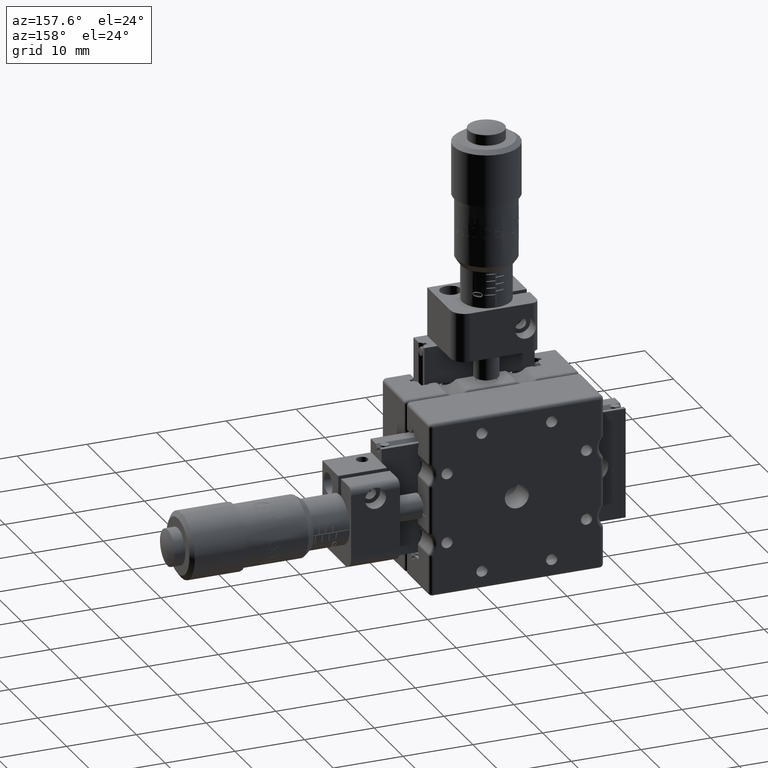
[diagram: clean part render]
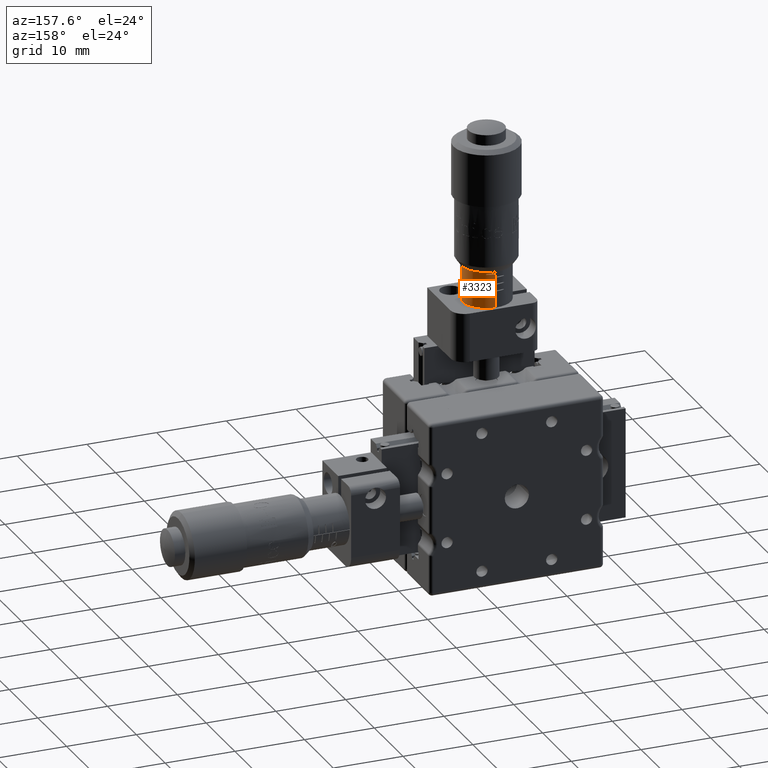
[diagram: same view with one face highlighted and labeled with its STEP entity id]
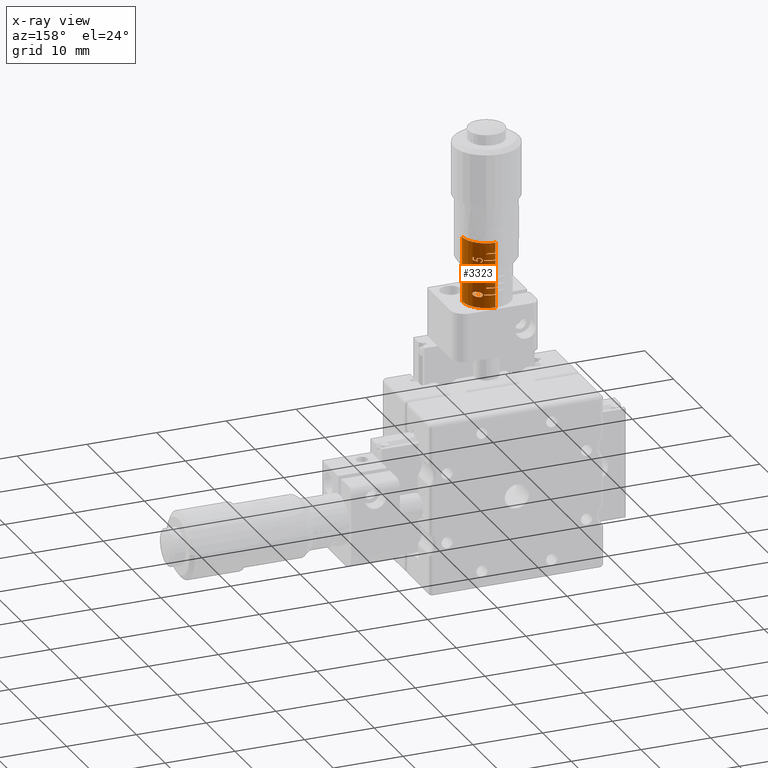
[diagram: x-ray of the same camera — body ghosted, the highlighted face saturated]
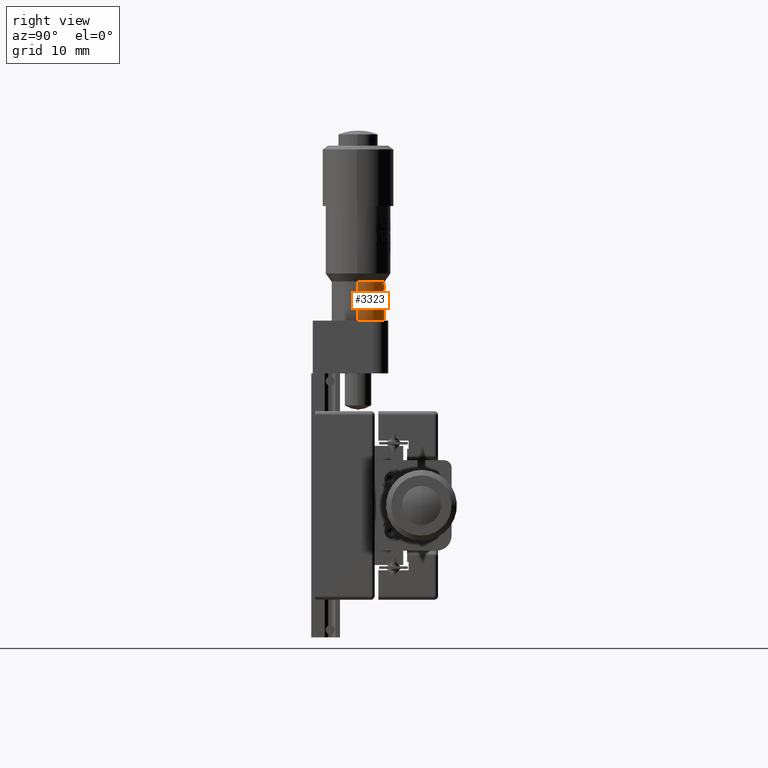
[diagram: same view with one face highlighted and labeled with its STEP entity id]
A machine part, auxiliary view. The second image highlights one B-rep face of the part: STEP entity #3323.
The next image is the same camera in x-ray: the body ghosted, the highlighted face saturated — about 0% of this face is hidden behind the body in this view.
A second angle (right view) of the same face is appended — the face is thin or edge-on in the first view.
In plain terms, the highlighted cylindrical surface (edge-blend (fillet) strip) has radius 3.5 mm, axis along (0, 0, 1).
Its self-contained STEP definition (entity closure, byte-faithful):
#148 = CARTESIAN_POINT ( 'NONE',  ( 1.345043838974542300, 9.431231510002987800, 32.35000000000000900 ) ) ;
#325 = FACE_BOUND ( 'NONE', #17824, .T. ) ;
#404 = CARTESIAN_POINT ( 'NONE',  ( 2.445667826079122700, 8.703738980900551400, 31.28853999732907100 ) ) ;
#492 = CARTESIAN_POINT ( 'NONE',  ( 1.842588051969444600, 9.176036225399691700, 31.62425157621712300 ) ) ;
#556 = AXIS2_PLACEMENT_3D ( 'NONE', #29316, #56627, #50916 ) ;
#670 = CARTESIAN_POINT ( 'NONE',  ( 2.199874524498787000, 8.925935090548714300, 26.75848073805216700 ) ) ;
#791 = CARTESIAN_POINT ( 'NONE',  ( 2.306688131590320700, 8.832335439031249200, 26.04070512820513600 ) ) ;
#828 = DIRECTION ( 'NONE',  ( -1.110223024626042000E-016, -1.762506864451433600E-016, -1.000000000000000000 ) ) ;
#906 = CARTESIAN_POINT ( 'NONE',  ( 2.820141735865207000, 8.272872545438046300, 31.70555555555556300 ) ) ;
#978 = B_SPLINE_CURVE_WITH_KNOTS ( 'NONE', 3,
 ( #3319, #3541, #41774, #41330, #46546, #52261, #19929, #35631, #62745, #14002 ),
 .UNSPECIFIED., .F., .F.,
 ( 4, 2, 2, 2, 4 ),
 ( 0.0000000000000000000, 0.0001162817139756727900, 0.0002325634279513455900, 0.0003488451419270183900, 0.0004651268559026911700 ),
 .UNSPECIFIED. ) ;
#1116 = ORIENTED_EDGE ( 'NONE', *, *, #64079, .T. ) ;
#1137 = CARTESIAN_POINT ( 'NONE',  ( 2.243669714953638200, 8.886480041583775200, 31.62655983367564600 ) ) ;
#1144 = CARTESIAN_POINT ( 'NONE',  ( 2.307101722523930800, 8.831972956154139400, 31.16282051282052000 ) ) ;
#1239 = VERTEX_POINT ( 'NONE', #18248 ) ;
#1254 = ORIENTED_EDGE ( 'NONE', *, *, #62588, .F. ) ;
#1406 = DIRECTION ( 'NONE',  ( 0.02923618277858830400, 0.9995725314435851500, 0.0000000000000000000 ) ) ;
#1543 = LINE ( 'NONE', #4075, #54221 ) ;
#1561 = CARTESIAN_POINT ( 'NONE',  ( -3.341146258833440100E-015, 6.199999999999907800, 32.35000000000000900 ) ) ;
#1716 = LINE ( 'NONE', #12764, #34014 ) ;
#1823 = CARTESIAN_POINT ( 'NONE',  ( 2.317583660354155800, 8.822784831038012100, 31.19076574097502100 ) ) ;
#1860 = EDGE_CURVE ( 'NONE', #30095, #50330, #37928, .T. ) ;
#1880 = CARTESIAN_POINT ( 'NONE',  ( 1.345043838974542000, 9.431231510002964700, 29.35000000000000900 ) ) ;
#1991 = CIRCLE ( 'NONE', #19037, 3.500000000000004400 ) ;
#2310 = CARTESIAN_POINT ( 'NONE',  ( 2.306688131590320700, 8.832335439031249200, 26.75982905982906200 ) ) ;
#2344 = ORIENTED_EDGE ( 'NONE', *, *, #25528, .T. ) ;
#2488 = CARTESIAN_POINT ( 'NONE',  ( 1.868729656467126300, 9.159366396889678800, 31.38267060630342400 ) ) ;
#2881 = VERTEX_POINT ( 'NONE', #30908 ) ;
#2964 = CARTESIAN_POINT ( 'NONE',  ( 0.1522948242705947600, 9.696685042508081100, 33.90000000000001300 ) ) ;
#3022 = ORIENTED_EDGE ( 'NONE', *, *, #55487, .F. ) ;
#3048 = EDGE_CURVE ( 'NONE', #39287, #44012, #68383, .T. ) ;
#3065 = CARTESIAN_POINT ( 'NONE',  ( 1.617056453708161800, 9.304050325867875100, 89.54102306920762500 ) ) ;
#3210 = CARTESIAN_POINT ( 'NONE',  ( 1.762029937466577100, 9.224111522327016000, 26.39454293536325100 ) ) ;
#3260 = EDGE_CURVE ( 'NONE', #28675, #7228, #66425, .T. ) ;
#3283 = ORIENTED_EDGE ( 'NONE', *, *, #45192, .F. ) ;
#3319 = CARTESIAN_POINT ( 'NONE',  ( 1.868729656467126300, 9.159366396889678800, 31.38267060630342400 ) ) ;
#3323 = ADVANCED_FACE ( 'NONE', ( #57289, #8828, #325 ), #4631, .T. ) ;
#3353 = CARTESIAN_POINT ( 'NONE',  ( 2.450975633510581000, 8.698554281552429000, 31.30830665964541700 ) ) ;
#3402 = EDGE_LOOP ( 'NONE', ( #43823, #14660, #19127, #33160, #29754, #47851, #30860, #63137, #4291, #45608, #3022, #36145, #6135, #41241, #24835, #36868, #50058, #19672, #1254, #43193, #16437, #52787, #3283, #11332, #11723, #49507, #12457, #12769, #13585, #35448, #66813, #6731 ) ) ;
#3531 = CARTESIAN_POINT ( 'NONE',  ( 1.617056453708154400, 9.304050325867843100, 26.45000000000001400 ) ) ;
#3541 = CARTESIAN_POINT ( 'NONE',  ( 1.869791135084605700, 9.158696112678073900, 31.42178275452875300 ) ) ;
#3822 =( BOUNDED_CURVE ( )  B_SPLINE_CURVE ( 3, ( #65528, #16316, #27263, #404 ),
 .UNSPECIFIED., .F., .T. ) 
 B_SPLINE_CURVE_WITH_KNOTS ( ( 4, 4 ),
 ( 0.7119615595347752500, 0.8263709268580833300 ),
 .UNSPECIFIED. ) 
 CURVE ( )  GEOMETRIC_REPRESENTATION_ITEM ( )  RATIONAL_B_SPLINE_CURVE ( ( 1.000000000000000000, 0.9989095054800453100, 0.9989095054800453100, 1.000000000000000000 ) ) 
 REPRESENTATION_ITEM ( '' )  );
#4074 = CARTESIAN_POINT ( 'NONE',  ( 2.089667197056748200, 9.008581913311092000, 26.05655381209104200 ) ) ;
#4075 = CARTESIAN_POINT ( 'NONE',  ( 1.617056453708161800, 9.304050325867875100, 89.54102306920762500 ) ) ;
#4133 = CARTESIAN_POINT ( 'NONE',  ( 1.826799477053987500, 9.185619137860682000, 31.17614053805915100 ) ) ;
#4291 = ORIENTED_EDGE ( 'NONE', *, *, #59993, .F. ) ;
#4300 = CARTESIAN_POINT ( 'NONE',  ( 2.127933603052497300, 8.978830434013486800, 31.74626068376069200 ) ) ;
#4303 = VERTEX_POINT ( 'NONE', #30018 ) ;
#4355 = CARTESIAN_POINT ( 'NONE',  ( 2.031587057911122600, 9.050174742709392800, 31.15480016308616500 ) ) ;
#4422 = CARTESIAN_POINT ( 'NONE',  ( 2.498060110213240000, 8.664585056465314800, 31.20297857276168700 ) ) ;
#4631 = CYLINDRICAL_SURFACE ( 'NONE', #6144, 3.500000000000004900 ) ;
#5059 = CARTESIAN_POINT ( 'NONE',  ( 2.306688131590320700, 8.832335439031249200, 26.04070512820513600 ) ) ;
#5456 = VECTOR ( 'NONE', #828, 1000.000000000000000 ) ;
#5500 = VERTEX_POINT ( 'NONE', #68334 ) ;
#5532 = CARTESIAN_POINT ( 'NONE',  ( 2.846237722388087900, 8.236892443811088400, 26.39454293536325100 ) ) ;
#5769 = CARTESIAN_POINT ( 'NONE',  ( 2.737309494181634900, 8.382028535163407000, 26.14599216129492400 ) ) ;
#5830 = CARTESIAN_POINT ( 'NONE',  ( -3.398667433906809700E-015, 6.199999999999907800, 31.70555555555556300 ) ) ;
#5846 = EDGE_CURVE ( 'NONE', #43414, #13036, #66514, .T. ) ;
#5899 = CARTESIAN_POINT ( 'NONE',  ( 2.161022490076872000, 8.953421961305432200, 31.65060468727638800 ) ) ;
#5938 = CARTESIAN_POINT ( 'NONE',  ( 2.085254022110421000, 9.011513001952572200, 31.74524271249684700 ) ) ;
#6062 = CARTESIAN_POINT ( 'NONE',  ( 1.345043838974543200, 9.431231510002961100, 30.45000000000000600 ) ) ;
#6135 = ORIENTED_EDGE ( 'NONE', *, *, #24599, .F. ) ;
#6144 = AXIS2_PLACEMENT_3D ( 'NONE', #49722, #32850, #38333 ) ;
#6239 = CARTESIAN_POINT ( 'NONE',  ( 2.540621218968835700, 8.612096486199428500, 26.04863651987253400 ) ) ;
#6428 = ORIENTED_EDGE ( 'NONE', *, *, #3260, .T. ) ;
#6513 = CARTESIAN_POINT ( 'NONE',  ( 2.820141735865207400, 8.272872545438067600, 89.54102306920762500 ) ) ;
#6605 = CARTESIAN_POINT ( 'NONE',  ( 2.354992501680075500, 8.789259311829905400, 31.46993812933041600 ) ) ;
#6731 = ORIENTED_EDGE ( 'NONE', *, *, #48306, .T. ) ;
#7096 = DIRECTION ( 'NONE',  ( -1.110223024626042000E-016, -1.762506864451433600E-016, -1.000000000000000000 ) ) ;
#7152 = VERTEX_POINT ( 'NONE', #2488 ) ;
#7228 = VERTEX_POINT ( 'NONE', #62141 ) ;
#7243 = DIRECTION ( 'NONE',  ( -0.02923618277858474100, -0.9995725314435851500, 0.0000000000000000000 ) ) ;
#7275 = CARTESIAN_POINT ( 'NONE',  ( 0.1522948242706012300, 9.696685042508081100, 26.45000000000003100 ) ) ;
#7293 = CARTESIAN_POINT ( 'NONE',  ( 1.345043838974542700, 9.431231510002998400, 89.54102306920762500 ) ) ;
#7722 = AXIS2_PLACEMENT_3D ( 'NONE', #9256, #14707, #52729 ) ;
#8026 = VECTOR ( 'NONE', #10516, 1000.000000000000000 ) ;
#8158 = VERTEX_POINT ( 'NONE', #3210 ) ;
#8213 = DIRECTION ( 'NONE',  ( -5.173820016161969200E-018, -1.793466154370806700E-016, -1.000000000000000000 ) ) ;
#8249 = CARTESIAN_POINT ( 'NONE',  ( 1.345043838974542300, 9.431231510002998400, 89.54102306920762500 ) ) ;
#8597 = CIRCLE ( 'NONE', #12843, 3.500000000000005300 ) ;
#8828 = FACE_BOUND ( 'NONE', #65018, .T. ) ;
#8875 = CARTESIAN_POINT ( 'NONE',  ( 1.769432086043322400, 9.219847098232760300, 31.28903806594785700 ) ) ;
#8909 = CARTESIAN_POINT ( 'NONE',  ( 0.1522948242706015900, 9.696685042508081100, 28.45000000000003500 ) ) ;
#8943 = CARTESIAN_POINT ( 'NONE',  ( 1.762029937466577100, 9.224111522327016000, 26.39454293536325100 ) ) ;
#9256 = CARTESIAN_POINT ( 'NONE',  ( -3.878472096733248600E-015, 6.199999999999919400, 27.45000000000001000 ) ) ;
#9333 = CARTESIAN_POINT ( 'NONE',  ( 1.345043838974544000, 9.431231510002961100, 28.45000000000001000 ) ) ;
#9529 = CARTESIAN_POINT ( 'NONE',  ( 1.767847977080011300, 9.220742250107544900, 26.32368784707362900 ) ) ;
#9572 = CARTESIAN_POINT ( 'NONE',  ( 1.873911991354574300, 9.156111410833865700, 31.32302804056229900 ) ) ;
#9604 = EDGE_CURVE ( 'NONE', #26556, #50223, #66749, .T. ) ;
#9703 = CARTESIAN_POINT ( 'NONE',  ( 0.1522948242706010400, 9.696685042508081100, 27.35000000000003300 ) ) ;
#10010 = CARTESIAN_POINT ( 'NONE',  ( 2.415895396434323900, 8.732627896685830400, 31.60391134316518300 ) ) ;
#10240 = CARTESIAN_POINT ( 'NONE',  ( 2.306688131590320700, 8.832335439031249200, 26.75982905982906200 ) ) ;
#10307 = DIRECTION ( 'NONE',  ( 0.02923618277858830400, 0.9995725314435851500, 0.0000000000000000000 ) ) ;
#10344 = EDGE_CURVE ( 'NONE', #22319, #36007, #32452, .T. ) ;
#10359 = VERTEX_POINT ( 'NONE', #66846 ) ;
#10516 = DIRECTION ( 'NONE',  ( -1.110223024626042000E-016, -1.762506864451433600E-016, -1.000000000000000000 ) ) ;
#10639 = LINE ( 'NONE', #37462, #30186 ) ;
#10681 = EDGE_CURVE ( 'NONE', #10359, #50055, #8597, .T. ) ;
#10944 = CARTESIAN_POINT ( 'NONE',  ( 2.846237722388087900, 8.236892443811088400, 26.39454293536325100 ) ) ;
#11009 = AXIS2_PLACEMENT_3D ( 'NONE', #30055, #35529, #45741 ) ;
#11188 = CARTESIAN_POINT ( 'NONE',  ( 2.127933603052497300, 8.978830434013486800, 31.74626068376069200 ) ) ;
#11204 = EDGE_CURVE ( 'NONE', #13036, #43435, #55019, .T. ) ;
#11332 = ORIENTED_EDGE ( 'NONE', *, *, #10681, .F. ) ;
#11363 = CARTESIAN_POINT ( 'NONE',  ( 1.867480682193339400, 9.160532628995021300, 26.64232556434873400 ) ) ;
#11421 = CARTESIAN_POINT ( 'NONE',  ( 1.762512999236761900, 9.223830061377551500, 31.43136103463786000 ) ) ;
#11433 = LINE ( 'NONE', #60923, #36924 ) ;
#11548 = DIRECTION ( 'NONE',  ( 0.02923618277858829100, 0.9995725314435850400, 0.0000000000000000000 ) ) ;
#11582 = CIRCLE ( 'NONE', #43516, 3.500000000000005300 ) ;
#11705 = AXIS2_PLACEMENT_3D ( 'NONE', #36639, #36874, #58729 ) ;
#11723 = ORIENTED_EDGE ( 'NONE', *, *, #59142, .F. ) ;
#11853 = CARTESIAN_POINT ( 'NONE',  ( 2.358290490556627100, 8.786209758782000300, 31.35568991747691200 ) ) ;
#11956 = AXIS2_PLACEMENT_3D ( 'NONE', #32019, #70303, #70072 ) ;
#12075 = CARTESIAN_POINT ( 'NONE',  ( 2.360013844530339400, 8.784634336540621600, 31.39602697649573300 ) ) ;
#12217 = EDGE_CURVE ( 'NONE', #8158, #28675, #34946, .T. ) ;
#12275 = LINE ( 'NONE', #32348, #8026 ) ;
#12317 = CARTESIAN_POINT ( 'NONE',  ( 2.359594008925504700, 8.785017685870091200, 31.37589426614145800 ) ) ;
#12457 = ORIENTED_EDGE ( 'NONE', *, *, #38434, .F. ) ;
#12529 = VERTEX_POINT ( 'NONE', #8909 ) ;
#12741 = CARTESIAN_POINT ( 'NONE',  ( -3.187349064288998300E-015, 6.199999999999921100, 30.45000000000000600 ) ) ;
#12764 = CARTESIAN_POINT ( 'NONE',  ( 0.1522948242706010100, 9.696685042508113000, 89.54102306920762500 ) ) ;
#12769 = ORIENTED_EDGE ( 'NONE', *, *, #20732, .F. ) ;
#12843 = AXIS2_PLACEMENT_3D ( 'NONE', #36385, #57748, #41595 ) ;
#12862 = VERTEX_POINT ( 'NONE', #21790 ) ;
#13036 = VERTEX_POINT ( 'NONE', #45275 ) ;
#13213 = EDGE_CURVE ( 'NONE', #46990, #8158, #34066, .T. ) ;
#13259 = AXIS2_PLACEMENT_3D ( 'NONE', #17317, #39172, #1406 ) ;
#13266 = CIRCLE ( 'NONE', #7722, 3.500000000000005800 ) ;
#13306 = VECTOR ( 'NONE', #29139, 1000.000000000000000 ) ;
#13388 = VERTEX_POINT ( 'NONE', #44078 ) ;
#13585 = ORIENTED_EDGE ( 'NONE', *, *, #66042, .F. ) ;
#13587 = DIRECTION ( 'NONE',  ( 5.173820016161969200E-018, 1.793466154370806700E-016, 1.000000000000000000 ) ) ;
#13841 =( BOUNDED_CURVE ( )  B_SPLINE_CURVE ( 3, ( #53092, #4422, #19849, #58810 ),
 .UNSPECIFIED., .F., .T. ) 
 B_SPLINE_CURVE_WITH_KNOTS ( ( 4, 4 ),
 ( 5.402865679146779100, 5.620097429031908100 ),
 .UNSPECIFIED. ) 
 CURVE ( )  GEOMETRIC_REPRESENTATION_ITEM ( )  RATIONAL_B_SPLINE_CURVE ( ( 1.000000000000000000, 0.9960713951291043600, 0.9960713951291043600, 1.000000000000000000 ) ) 
 REPRESENTATION_ITEM ( '' )  );
#13854 = AXIS2_PLACEMENT_3D ( 'NONE', #16262, #65947, #21730 ) ;
#14002 = CARTESIAN_POINT ( 'NONE',  ( 2.131875028825937600, 8.975807785396510100, 31.65128205128205600 ) ) ;
#14660 = ORIENTED_EDGE ( 'NONE', *, *, #33645, .T. ) ;
#14707 = DIRECTION ( 'NONE',  ( -5.173820016161969200E-018, -1.793466154370806700E-016, -1.000000000000000000 ) ) ;
#14875 = EDGE_CURVE ( 'NONE', #33345, #58216, #70293, .T. ) ;
#15609 = CIRCLE ( 'NONE', #53939, 3.500000000000005800 ) ;
#15667 = CARTESIAN_POINT ( 'NONE',  ( 0.1522948242706015900, 9.696685042508081100, 28.35000000000003000 ) ) ;
#15698 = CARTESIAN_POINT ( 'NONE',  ( 2.461621701117520500, 8.688056539054162600, 31.35917674385309400 ) ) ;
#15704 = CARTESIAN_POINT ( 'NONE',  ( 2.813565998937394200, 8.281899530440558300, 26.54347486382901200 ) ) ;
#15724 = CIRCLE ( 'NONE', #16575, 3.500000000000005800 ) ;
#15773 = VERTEX_POINT ( 'NONE', #9333 ) ;
#16240 = ORIENTED_EDGE ( 'NONE', *, *, #40990, .T. ) ;
#16262 = CARTESIAN_POINT ( 'NONE',  ( -3.543520225658149400E-015, 6.199999999999919400, 29.35000000000000900 ) ) ;
#16316 = CARTESIAN_POINT ( 'NONE',  ( 2.631247812244735600, 8.511789495589582100, 31.32769404889607800 ) ) ;
#16437 = ORIENTED_EDGE ( 'NONE', *, *, #31022, .F. ) ;
#16444 = B_SPLINE_CURVE_WITH_KNOTS ( 'NONE', 3,
 ( #68487, #3353, #42303, #21153, #15698, #36615, #58701, #37079, #63949, #31618 ),
 .UNSPECIFIED., .F., .F.,
 ( 4, 3, 3, 4 ),
 ( 0.0000000000000000000, 6.334014363493940500E-005, 9.563846947639820900E-005, 0.0001283808724055170400 ),
 .UNSPECIFIED. ) ;
#16575 = AXIS2_PLACEMENT_3D ( 'NONE', #12741, #8213, #67650 ) ;
#16581 = CARTESIAN_POINT ( 'NONE',  ( 2.084660219546551100, 9.014514170056894900, 26.75340539143032000 ) ) ;
#16637 = CARTESIAN_POINT ( 'NONE',  ( 2.042415203876899500, 9.042744516775249200, 31.73980301214999500 ) ) ;
#17215 = DIRECTION ( 'NONE',  ( -1.110223024626042000E-016, -1.762506864451433600E-016, -1.000000000000000000 ) ) ;
#17297 = CARTESIAN_POINT ( 'NONE',  ( 2.336062634847836600, 8.806302239969573600, 31.24813953679431600 ) ) ;
#17317 = CARTESIAN_POINT ( 'NONE',  ( -3.909004263056394500E-015, 6.199999999999918500, 26.45000000000001400 ) ) ;
#17432 = ORIENTED_EDGE ( 'NONE', *, *, #1860, .T. ) ;
#17824 = EDGE_LOOP ( 'NONE', ( #63579, #58276, #16240, #17432, #49578, #1116, #61994, #41853, #57056, #52515, #59331, #69435, #43425, #45875 ) ) ;
#18248 = CARTESIAN_POINT ( 'NONE',  ( 2.307101722523930800, 8.831972956154139400, 31.16282051282052000 ) ) ;
#18629 = EDGE_CURVE ( 'NONE', #67633, #13388, #43617, .T. ) ;
#18830 = CARTESIAN_POINT ( 'NONE',  ( 1.762029937466577100, 9.224111522327017800, 31.37715845352564900 ) ) ;
#19037 = AXIS2_PLACEMENT_3D ( 'NONE', #59709, #53291, #10307 ) ;
#19117 = VERTEX_POINT ( 'NONE', #55461 ) ;
#19127 = ORIENTED_EDGE ( 'NONE', *, *, #68753, .F. ) ;
#19369 = VERTEX_POINT ( 'NONE', #49695 ) ;
#19514 = CIRCLE ( 'NONE', #56625, 3.500000000000005800 ) ;
#19530 = DIRECTION ( 'NONE',  ( 1.110223024626042000E-016, 1.762506864451433600E-016, 1.000000000000000000 ) ) ;
#19553 = EDGE_CURVE ( 'NONE', #7152, #48851, #978, .T. ) ;
#19576 = VERTEX_POINT ( 'NONE', #63684 ) ;
#19581 = DIRECTION ( 'NONE',  ( 0.02923618277858829100, 0.9995725314435850400, 0.0000000000000000000 ) ) ;
#19672 = ORIENTED_EDGE ( 'NONE', *, *, #39546, .F. ) ;
#19849 = CARTESIAN_POINT ( 'NONE',  ( 2.669747941644502500, 8.477483203642934800, 31.23930361568458700 ) ) ;
#19929 = CARTESIAN_POINT ( 'NONE',  ( 2.008974682137678600, 9.066252367630708500, 31.62461843521504400 ) ) ;
#20031 = CARTESIAN_POINT ( 'NONE',  ( 1.883504948186066000, 9.150174075522207000, 31.12051005041934100 ) ) ;
#20218 = CARTESIAN_POINT ( 'NONE',  ( 2.199641014403469700, 8.923310626055593900, 26.04271338868368000 ) ) ;
#20260 = CARTESIAN_POINT ( 'NONE',  ( 1.868729656467126300, 9.159366396889678800, 31.38267060630342400 ) ) ;
#20338 = CIRCLE ( 'NONE', #11956, 3.500000000000004900 ) ;
#20583 = DIRECTION ( 'NONE',  ( -1.110223024626042000E-016, -1.762506864451433600E-016, -1.000000000000000000 ) ) ;
#20690 = CARTESIAN_POINT ( 'NONE',  ( 1.868729709774632000, 9.159754866691720600, 26.14892436932199600 ) ) ;
#20732 = EDGE_CURVE ( 'NONE', #55777, #12862, #28974, .T. ) ;
#20981 = CARTESIAN_POINT ( 'NONE',  ( 2.008205794582160800, 9.066676334994870200, 31.16144774018862100 ) ) ;
#21153 = CARTESIAN_POINT ( 'NONE',  ( 2.459774683998958700, 8.689881222861339800, 31.34871418529576600 ) ) ;
#21154 = CARTESIAN_POINT ( 'NONE',  ( 2.209860445367372300, 8.914594158452112900, 31.74098659734547200 ) ) ;
#21730 = DIRECTION ( 'NONE',  ( -0.02923618277858830100, -0.9995725314435851500, 0.0000000000000000000 ) ) ;
#21790 = CARTESIAN_POINT ( 'NONE',  ( 0.1522948242706019800, 9.696685042508082800, 32.35000000000000900 ) ) ;
#21982 = DIRECTION ( 'NONE',  ( 5.173820016161969200E-018, 1.793466154370806700E-016, 1.000000000000000000 ) ) ;
#21983 = EDGE_CURVE ( 'NONE', #64947, #19576, #26417, .T. ) ;
#22268 = CARTESIAN_POINT ( 'NONE',  ( 2.189412078834650300, 8.930879629841095700, 31.64712329643389700 ) ) ;
#22319 = VERTEX_POINT ( 'NONE', #49181 ) ;
#22649 = CIRCLE ( 'NONE', #556, 3.500000000000004900 ) ;
#22771 = CARTESIAN_POINT ( 'NONE',  ( 1.345043838974542300, 9.431231510002998400, 89.54102306920762500 ) ) ;
#22912 = EDGE_CURVE ( 'NONE', #58228, #26556, #70149, .T. ) ;
#23789 = VERTEX_POINT ( 'NONE', #48776 ) ;
#23983 = AXIS2_PLACEMENT_3D ( 'NONE', #29292, #13587, #67323 ) ;
#24573 = DIRECTION ( 'NONE',  ( -1.110223024626042000E-016, -1.762506864451433600E-016, -1.000000000000000000 ) ) ;
#24599 = EDGE_CURVE ( 'NONE', #15773, #19117, #50358, .T. ) ;
#24651 = CARTESIAN_POINT ( 'NONE',  ( 1.767467420193002700, 9.220966171238423200, 26.46527695348951800 ) ) ;
#24688 = LINE ( 'NONE', #65964, #66379 ) ;
#24835 = ORIENTED_EDGE ( 'NONE', *, *, #37909, .F. ) ;
#25528 = EDGE_CURVE ( 'NONE', #7228, #46990, #59315, .T. ) ;
#25617 = VECTOR ( 'NONE', #59824, 1000.000000000000000 ) ;
#25693 = CARTESIAN_POINT ( 'NONE',  ( 1.790318634323297100, 9.207478910856307800, 26.25727847669590200 ) ) ;
#25771 = AXIS2_PLACEMENT_3D ( 'NONE', #62438, #35635, #32048 ) ;
#26120 = LINE ( 'NONE', #61693, #61831 ) ;
#26174 = CARTESIAN_POINT ( 'NONE',  ( 1.807386813534497300, 9.197320104032288100, 26.22742523779398700 ) ) ;
#26417 = CIRCLE ( 'NONE', #23983, 3.500000000000004900 ) ;
#26556 = VERTEX_POINT ( 'NONE', #7275 ) ;
#26882 = CARTESIAN_POINT ( 'NONE',  ( 2.838849541331970500, 8.247289077513109100, 26.47503215875740100 ) ) ;
#27017 = CARTESIAN_POINT ( 'NONE',  ( -3.380442037134337900E-015, 6.199999999999919400, 29.45000000000000300 ) ) ;
#27199 = CARTESIAN_POINT ( 'NONE',  ( 2.715505673721301700, 8.408173212405969800, 89.54102306920762500 ) ) ;
#27216 = EDGE_CURVE ( 'NONE', #48851, #2881, #30481, .T. ) ;
#27263 = CARTESIAN_POINT ( 'NONE',  ( 2.541203670387432100, 8.610418973326101600, 31.30866343589609700 ) ) ;
#28040 = CARTESIAN_POINT ( 'NONE',  ( 1.957826790514752800, 9.101649618928160400, 31.71073859408098600 ) ) ;
#28425 = VECTOR ( 'NONE', #7096, 1000.000000000000000 ) ;
#28602 = CIRCLE ( 'NONE', #36959, 3.500000000000004900 ) ;
#28675 = VERTEX_POINT ( 'NONE', #5059 ) ;
#28707 = CARTESIAN_POINT ( 'NONE',  ( 2.360013844530339400, 8.784634336540621600, 31.39602697649573300 ) ) ;
#28974 = CIRCLE ( 'NONE', #46264, 3.500000000000005300 ) ;
#29139 = DIRECTION ( 'NONE',  ( -1.110223024626042000E-016, -1.762506864451433600E-016, -1.000000000000000000 ) ) ;
#29292 = CARTESIAN_POINT ( 'NONE',  ( -3.350427252812809800E-015, 6.199999999999921100, 30.35000000000000900 ) ) ;
#29316 = CARTESIAN_POINT ( 'NONE',  ( -3.170566031286192800E-015, 6.199999999999907800, 33.90000000000001300 ) ) ;
#29754 = ORIENTED_EDGE ( 'NONE', *, *, #52993, .F. ) ;
#30018 = CARTESIAN_POINT ( 'NONE',  ( 2.820141735865207000, 8.272872545438046300, 31.27136752136752700 ) ) ;
#30055 = CARTESIAN_POINT ( 'NONE',  ( -3.399989632355384800E-015, 6.199999999999907800, 31.45000000000000600 ) ) ;
#30095 = VERTEX_POINT ( 'NONE', #47853 ) ;
#30178 = VECTOR ( 'NONE', #24573, 1000.000000000000000 ) ;
#30186 = VECTOR ( 'NONE', #20583, 1000.000000000000000 ) ;
#30481 = B_SPLINE_CURVE_WITH_KNOTS ( 'NONE', 3,
 ( #66027, #5899, #22268, #1137, #65788, #33440, #49849, #6605, #44616, #12075 ),
 .UNSPECIFIED., .F., .F.,
 ( 4, 2, 2, 2, 4 ),
 ( 0.0000000000000000000, 0.0001089139476068465400, 0.0002178278952136930800, 0.0003267418428205396200, 0.0004356557904273861600 ),
 .UNSPECIFIED. ) ;
#30517 = CARTESIAN_POINT ( 'NONE',  ( 1.984005559481199600, 9.083641758230035300, 31.06800777897396100 ) ) ;
#30860 = ORIENTED_EDGE ( 'NONE', *, *, #22912, .F. ) ;
#30908 = CARTESIAN_POINT ( 'NONE',  ( 2.360013844530339400, 8.784634336540621600, 31.39602697649573300 ) ) ;
#31022 = EDGE_CURVE ( 'NONE', #55842, #64947, #39183, .T. ) ;
#31155 = DIRECTION ( 'NONE',  ( -1.110223024626042000E-016, -1.762506864451433600E-016, -1.000000000000000000 ) ) ;
#31395 = CARTESIAN_POINT ( 'NONE',  ( 2.306688131590320700, 8.832335439031249200, 26.04070512820513600 ) ) ;
#31618 = CARTESIAN_POINT ( 'NONE',  ( 2.465665257404047800, 8.684048074903195400, 31.41319945245727800 ) ) ;
#31862 = CARTESIAN_POINT ( 'NONE',  ( 2.055076097332677200, 9.033136465857477800, 31.05427350427351400 ) ) ;
#31909 = CARTESIAN_POINT ( 'NONE',  ( 1.942605865524033200, 9.111479254534659200, 31.20101501345831400 ) ) ;
#32019 = CARTESIAN_POINT ( 'NONE',  ( -3.765441787703905500E-015, 6.199999999999919400, 28.35000000000000900 ) ) ;
#32048 = DIRECTION ( 'NONE',  ( -0.02923618277858562900, -0.9995725314435851500, 0.0000000000000000000 ) ) ;
#32348 = CARTESIAN_POINT ( 'NONE',  ( 0.1522948242706010100, 9.696685042508113000, 89.54102306920762500 ) ) ;
#32452 = CIRCLE ( 'NONE', #11009, 3.500000000000004400 ) ;
#32786 = CARTESIAN_POINT ( 'NONE',  ( 1.771688151743999700, 9.218552038595049700, 31.48545471210462700 ) ) ;
#32850 = DIRECTION ( 'NONE',  ( 1.110223024626042000E-016, 1.762506864451433600E-016, 1.000000000000000000 ) ) ;
#33091 = CARTESIAN_POINT ( 'NONE',  ( 2.426656190761195200, 8.727208678149583700, 26.04142428905617700 ) ) ;
#33160 = ORIENTED_EDGE ( 'NONE', *, *, #14875, .F. ) ;
#33339 = ORIENTED_EDGE ( 'NONE', *, *, #12217, .T. ) ;
#33345 = VERTEX_POINT ( 'NONE', #45614 ) ;
#33440 = CARTESIAN_POINT ( 'NONE',  ( 2.313310693667473200, 8.826678226303371800, 31.56481136203093000 ) ) ;
#33645 = EDGE_CURVE ( 'NONE', #60334, #19369, #28602, .T. ) ;
#33899 = VERTEX_POINT ( 'NONE', #68904 ) ;
#34014 = VECTOR ( 'NONE', #45321, 1000.000000000000000 ) ;
#34066 = B_SPLINE_CURVE_WITH_KNOTS ( 'NONE', 3,
 ( #2310, #670, #16581, #43891, #11363, #38667, #63149, #24651, #57413, #8943 ),
 .UNSPECIFIED., .F., .F.,
 ( 4, 2, 2, 2, 4 ),
 ( 0.0000000000000000000, 0.0004252463702309746800, 0.0006378695553464619600, 0.0007441811479042095100, 0.0008504927404619570500 ),
 .UNSPECIFIED. ) ;
#34370 = CARTESIAN_POINT ( 'NONE',  ( 2.344231259801565300, 8.798980595058310400, 31.27662755037952600 ) ) ;
#34946 = B_SPLINE_CURVE_WITH_KNOTS ( 'NONE', 3,
 ( #58477, #63957, #9529, #25693, #26174, #20690, #52751, #47532, #4074, #20218, #64205, #31395 ),
 .UNSPECIFIED., .F., .F.,
 ( 4, 2, 2, 2, 2, 4 ),
 ( 0.0000000000000000000, 0.0001059537137296422600, 0.0002119074274592845200, 0.0004238148549185690500, 0.0006357222823778535400, 0.0008476297098371381000 ),
 .UNSPECIFIED. ) ;
#35448 = ORIENTED_EDGE ( 'NONE', *, *, #63034, .F. ) ;
#35529 = DIRECTION ( 'NONE',  ( -5.173820016161969200E-018, -1.793466154370806700E-016, -1.000000000000000000 ) ) ;
#35631 = CARTESIAN_POINT ( 'NONE',  ( 2.069400404272322600, 9.022935329619929900, 31.64682825224582200 ) ) ;
#35635 = DIRECTION ( 'NONE',  ( 5.173820016161969200E-018, 1.793466154370806700E-016, 1.000000000000000000 ) ) ;
#35724 = CARTESIAN_POINT ( 'NONE',  ( 1.802356646187385900, 9.200312804320347500, 31.21075688171365300 ) ) ;
#35925 = CARTESIAN_POINT ( 'NONE',  ( 3.498503860052556200, 6.097673360274859200, 89.54102306920762500 ) ) ;
#36007 = VERTEX_POINT ( 'NONE', #65888 ) ;
#36045 = VERTEX_POINT ( 'NONE', #39240 ) ;
#36145 = ORIENTED_EDGE ( 'NONE', *, *, #63805, .F. ) ;
#36171 = CARTESIAN_POINT ( 'NONE',  ( 2.306688131590320700, 8.832335439031249200, 26.75982905982906200 ) ) ;
#36385 = CARTESIAN_POINT ( 'NONE',  ( -3.429335603557415800E-015, 6.199999999999908700, 31.35000000000000900 ) ) ;
#36615 = CARTESIAN_POINT ( 'NONE',  ( 2.463131683399434600, 8.686560702869401900, 31.36978382041966300 ) ) ;
#36630 = VERTEX_POINT ( 'NONE', #44420 ) ;
#36639 = CARTESIAN_POINT ( 'NONE',  ( -3.553867865690473300E-015, 6.199999999999919400, 27.35000000000001200 ) ) ;
#36668 = CARTESIAN_POINT ( 'NONE',  ( 2.055076097332677200, 9.033136465857474200, 31.14925213675214300 ) ) ;
#36848 = CARTESIAN_POINT ( 'NONE',  ( 2.286572773685342500, 8.850299904490535500, 31.71519182577757300 ) ) ;
#36868 = ORIENTED_EDGE ( 'NONE', *, *, #62479, .F. ) ;
#36874 = DIRECTION ( 'NONE',  ( 5.173820016161969200E-018, 1.793466154370806700E-016, 1.000000000000000000 ) ) ;
#36924 = VECTOR ( 'NONE', #17215, 1000.000000000000000 ) ;
#36959 = AXIS2_PLACEMENT_3D ( 'NONE', #42251, #41766, #63676 ) ;
#37079 = CARTESIAN_POINT ( 'NONE',  ( 2.465060722070987300, 8.684648366866381900, 31.39132500668987500 ) ) ;
#37324 = CARTESIAN_POINT ( 'NONE',  ( 2.737840062013698000, 8.381351089166317400, 26.64592013506667800 ) ) ;
#37462 = CARTESIAN_POINT ( 'NONE',  ( 0.1522948242706010100, 9.696685042508113000, 89.54102306920762500 ) ) ;
#37556 = CARTESIAN_POINT ( 'NONE',  ( 2.169175362835373400, 8.947248900496081300, 31.74535772971910000 ) ) ;
#37909 = EDGE_CURVE ( 'NONE', #36630, #12529, #10639, .T. ) ;
#37928 = LINE ( 'NONE', #27199, #48941 ) ;
#38114 = CARTESIAN_POINT ( 'NONE',  ( 2.689856557182630100, 8.440627838582187800, 26.11541468712016500 ) ) ;
#38333 = DIRECTION ( 'NONE',  ( 0.9995725314435851500, -0.02923618277858830100, 0.0000000000000000000 ) ) ;
#38434 = EDGE_CURVE ( 'NONE', #12862, #22319, #12275, .T. ) ;
#38667 = CARTESIAN_POINT ( 'NONE',  ( 1.806962418944127800, 9.197573385748965400, 26.56195718662940700 ) ) ;
#38702 = CARTESIAN_POINT ( 'NONE',  ( 1.345043838974544000, 9.431231510002961100, 29.45000000000000300 ) ) ;
#39029 = CARTESIAN_POINT ( 'NONE',  ( 2.838558333149524800, 8.247694493641853700, 26.31461305116395300 ) ) ;
#39172 = DIRECTION ( 'NONE',  ( -5.173820016161969200E-018, -1.793466154370806700E-016, -1.000000000000000000 ) ) ;
#39183 = LINE ( 'NONE', #54356, #25617 ) ;
#39240 = CARTESIAN_POINT ( 'NONE',  ( 2.055076097332677200, 9.033136465857474200, 31.14925213675214300 ) ) ;
#39287 = VERTEX_POINT ( 'NONE', #38702 ) ;
#39393 = B_SPLINE_CURVE_WITH_KNOTS ( 'NONE', 3,
 ( #36668, #4355, #20981, #47577, #31909, #58991, #63535, #9572, #42106, #20260 ),
 .UNSPECIFIED., .F., .F.,
 ( 4, 2, 2, 2, 4 ),
 ( 8.673617379884035500E-019, 8.753349801865205100E-005, 0.0001750669960373032300, 0.0002626004940559470700, 0.0003501339920745909700 ),
 .UNSPECIFIED. ) ;
#39546 = EDGE_CURVE ( 'NONE', #53728, #39287, #15609, .T. ) ;
#39779 = DIRECTION ( 'NONE',  ( 5.173820016161969200E-018, 1.793466154370806700E-016, 1.000000000000000000 ) ) ;
#40982 = CARTESIAN_POINT ( 'NONE',  ( 1.345043838974542300, 9.431231510002984200, 32.45000000000001000 ) ) ;
#40990 = EDGE_CURVE ( 'NONE', #54556, #30095, #11582, .T. ) ;
#41188 = CARTESIAN_POINT ( 'NONE',  ( 2.019792989444876500, 9.058729822384295400, 31.05985077628051600 ) ) ;
#41221 = LINE ( 'NONE', #63308, #30178 ) ;
#41241 = ORIENTED_EDGE ( 'NONE', *, *, #50782, .F. ) ;
#41330 = CARTESIAN_POINT ( 'NONE',  ( 1.906983696637420300, 9.134918359177580900, 31.52927582148305100 ) ) ;
#41595 = DIRECTION ( 'NONE',  ( -0.02923618277858562900, -0.9995725314435851500, 0.0000000000000000000 ) ) ;
#41766 = DIRECTION ( 'NONE',  ( 1.110223024626042000E-016, 1.762506864451433600E-016, 1.000000000000000000 ) ) ;
#41774 = CARTESIAN_POINT ( 'NONE',  ( 1.876295494086849700, 9.154631586703821700, 31.46102339906447300 ) ) ;
#41853 = ORIENTED_EDGE ( 'NONE', *, *, #11204, .T. ) ;
#41872 = CARTESIAN_POINT ( 'NONE',  ( 1.916179710141838700, 9.129150588191228300, 31.09861490815816200 ) ) ;
#41896 = CARTESIAN_POINT ( 'NONE',  ( 0.1522948242706015900, 9.696685042508081100, 29.45000000000003100 ) ) ;
#41939 = EDGE_CURVE ( 'NONE', #33899, #58228, #56692, .T. ) ;
#42106 = CARTESIAN_POINT ( 'NONE',  ( 1.869625263711936800, 9.158800854272097800, 31.35283817479551900 ) ) ;
#42251 = CARTESIAN_POINT ( 'NONE',  ( -4.573873327123079200E-015, 6.199999999999906000, 24.50000000000000700 ) ) ;
#42303 = CARTESIAN_POINT ( 'NONE',  ( 2.456157136069854200, 8.693455029006171800, 31.32822233025996900 ) ) ;
#42765 = CARTESIAN_POINT ( 'NONE',  ( 2.539283184762455700, 8.613621745478244700, 26.74952653081614100 ) ) ;
#43041 = CARTESIAN_POINT ( 'NONE',  ( 1.345043838974542700, 9.431231510002961100, 27.45000000000001000 ) ) ;
#43140 = DIRECTION ( 'NONE',  ( -0.02923618277856788000, -0.9995725314435857100, 0.0000000000000000000 ) ) ;
#43193 = ORIENTED_EDGE ( 'NONE', *, *, #21983, .F. ) ;
#43414 = VERTEX_POINT ( 'NONE', #45919 ) ;
#43425 = ORIENTED_EDGE ( 'NONE', *, *, #27216, .T. ) ;
#43435 = VERTEX_POINT ( 'NONE', #18830 ) ;
#43516 = AXIS2_PLACEMENT_3D ( 'NONE', #5830, #21982, #43140 ) ;
#43617 = LINE ( 'NONE', #65024, #47015 ) ;
#43689 = CARTESIAN_POINT ( 'NONE',  ( 2.690346924578924400, 8.440070463417191200, 26.67704334147834900 ) ) ;
#43823 = ORIENTED_EDGE ( 'NONE', *, *, #47023, .F. ) ;
#43840 = DIRECTION ( 'NONE',  ( -5.173820016161969200E-018, -1.793466154370806700E-016, -1.000000000000000000 ) ) ;
#43891 = CARTESIAN_POINT ( 'NONE',  ( 1.921829058217269700, 9.125901165811138000, 26.67845417763733800 ) ) ;
#43916 = CARTESIAN_POINT ( 'NONE',  ( 3.498503860052542900, 6.097673360274848500, 24.50000000000000700 ) ) ;
#43950 = CARTESIAN_POINT ( 'NONE',  ( 1.811440128869355300, 9.194865602369858900, 31.58209266638843000 ) ) ;
#44012 = VERTEX_POINT ( 'NONE', #1880 ) ;
#44020 = CARTESIAN_POINT ( 'NONE',  ( 2.845583569626298500, 8.237806519698590800, 26.35402758126750600 ) ) ;
#44078 = CARTESIAN_POINT ( 'NONE',  ( 0.1522948242706019800, 9.696685042508082800, 32.45000000000001000 ) ) ;
#44248 = EDGE_CURVE ( 'NONE', #1239, #4303, #13841, .T. ) ;
#44249 = CARTESIAN_POINT ( 'NONE',  ( 2.795876853704226200, 8.305730411928772500, 26.21836737688727900 ) ) ;
#44420 = CARTESIAN_POINT ( 'NONE',  ( 0.1522948242706015900, 9.696685042508081100, 29.35000000000003300 ) ) ;
#44616 = CARTESIAN_POINT ( 'NONE',  ( 2.359217147950253100, 8.785361795327478500, 31.43305501759431700 ) ) ;
#45017 = CARTESIAN_POINT ( 'NONE',  ( 0.1522948242706013700, 9.696685042508081100, 30.45000000000003100 ) ) ;
#45148 = CARTESIAN_POINT ( 'NONE',  ( 0.1522948242706018400, 9.696685042508082800, 31.35000000000000900 ) ) ;
#45192 = EDGE_CURVE ( 'NONE', #50055, #55945, #26120, .T. ) ;
#45275 = CARTESIAN_POINT ( 'NONE',  ( 2.127933603052497300, 8.978830434013486800, 31.74626068376069200 ) ) ;
#45321 = DIRECTION ( 'NONE',  ( -1.110223024626042000E-016, -1.762506864451433600E-016, -1.000000000000000000 ) ) ;
#45498 = EDGE_CURVE ( 'NONE', #59454, #49870, #13266, .T. ) ;
#45558 = DIRECTION ( 'NONE',  ( -1.110223024626042000E-016, -1.762506864451433600E-016, -1.000000000000000000 ) ) ;
#45608 = ORIENTED_EDGE ( 'NONE', *, *, #45498, .F. ) ;
#45614 = CARTESIAN_POINT ( 'NONE',  ( 1.617056453708154400, 9.304050325867841300, 26.35000000000001200 ) ) ;
#45741 = DIRECTION ( 'NONE',  ( 0.02923618277858830400, 0.9995725314435851500, 0.0000000000000000000 ) ) ;
#45875 = ORIENTED_EDGE ( 'NONE', *, *, #46649, .T. ) ;
#45919 = CARTESIAN_POINT ( 'NONE',  ( 2.465665257404047800, 8.684048074903195400, 31.41319945245727800 ) ) ;
#46123 = EDGE_CURVE ( 'NONE', #43435, #56919, #56097, .T. ) ;
#46264 = AXIS2_PLACEMENT_3D ( 'NONE', #1561, #39779, #7243 ) ;
#46546 = CARTESIAN_POINT ( 'NONE',  ( 1.929414894435811800, 9.120322698794929300, 31.55890652825006600 ) ) ;
#46649 = EDGE_CURVE ( 'NONE', #2881, #1239, #65301, .T. ) ;
#46990 = VERTEX_POINT ( 'NONE', #36171 ) ;
#47015 = VECTOR ( 'NONE', #59078, 1000.000000000000000 ) ;
#47023 = EDGE_CURVE ( 'NONE', #60334, #23789, #54974, .T. ) ;
#47532 = CARTESIAN_POINT ( 'NONE',  ( 2.032861209674128300, 9.049896797850655300, 26.06759743981744700 ) ) ;
#47577 = CARTESIAN_POINT ( 'NONE',  ( 1.963902773335900900, 9.097207210383224700, 31.18427857591456800 ) ) ;
#47851 = ORIENTED_EDGE ( 'NONE', *, *, #9604, .F. ) ;
#47853 = CARTESIAN_POINT ( 'NONE',  ( 2.715505673721300800, 8.408173212405937800, 31.70555555555556300 ) ) ;
#47993 = CARTESIAN_POINT ( 'NONE',  ( 2.322578692558704200, 8.818689692279523500, 31.69518450396951400 ) ) ;
#48152 = LINE ( 'NONE', #6513, #53264 ) ;
#48306 = EDGE_CURVE ( 'NONE', #67633, #23789, #22649, .T. ) ;
#48464 = CARTESIAN_POINT ( 'NONE',  ( 2.387200021111346000, 8.759918660189169900, 31.63930934550705100 ) ) ;
#48776 = CARTESIAN_POINT ( 'NONE',  ( 3.498503860052543800, 6.097673360274848500, 33.90000000000001300 ) ) ;
#48851 = VERTEX_POINT ( 'NONE', #63440 ) ;
#48941 = VECTOR ( 'NONE', #49027, 1000.000000000000000 ) ;
#49027 = DIRECTION ( 'NONE',  ( -1.110223024626042000E-016, -1.762506864451433600E-016, -1.000000000000000000 ) ) ;
#49181 = CARTESIAN_POINT ( 'NONE',  ( 0.1522948242706018400, 9.696685042508082800, 31.45000000000000600 ) ) ;
#49294 = DIRECTION ( 'NONE',  ( 1.110223024626042000E-016, 1.762506864451433600E-016, 1.000000000000000000 ) ) ;
#49507 = ORIENTED_EDGE ( 'NONE', *, *, #10344, .F. ) ;
#49545 = DIRECTION ( 'NONE',  ( -1.110223024626042000E-016, -1.762506864451433600E-016, -1.000000000000000000 ) ) ;
#49578 = ORIENTED_EDGE ( 'NONE', *, *, #63833, .T. ) ;
#49695 = CARTESIAN_POINT ( 'NONE',  ( 0.1522948242706013100, 9.696685042508081100, 24.50000000000003200 ) ) ;
#49722 = CARTESIAN_POINT ( 'NONE',  ( 3.023686577895448700E-015, 6.199999999999918500, 89.54102306920762500 ) ) ;
#49771 = CARTESIAN_POINT ( 'NONE',  ( 0.1522948242706010100, 9.696685042508113000, 89.54102306920762500 ) ) ;
#49849 = CARTESIAN_POINT ( 'NONE',  ( 2.331339723015813300, 8.810576289395854100, 31.53652615651751000 ) ) ;
#49870 = VERTEX_POINT ( 'NONE', #43041 ) ;
#50055 = VERTEX_POINT ( 'NONE', #45148 ) ;
#50058 = ORIENTED_EDGE ( 'NONE', *, *, #3048, .F. ) ;
#50223 = VERTEX_POINT ( 'NONE', #3531 ) ;
#50330 = VERTEX_POINT ( 'NONE', #64624 ) ;
#50358 = LINE ( 'NONE', #8249, #62260 ) ;
#50739 = LINE ( 'NONE', #7293, #13306 ) ;
#50782 = EDGE_CURVE ( 'NONE', #12529, #15773, #19514, .T. ) ;
#50916 = DIRECTION ( 'NONE',  ( 0.9995725314435851500, -0.02923618277858830100, 0.0000000000000000000 ) ) ;
#51041 = DIRECTION ( 'NONE',  ( -1.110223024626042000E-016, -1.762506864451433600E-016, -1.000000000000000000 ) ) ;
#51246 = LINE ( 'NONE', #3065, #63233 ) ;
#51276 = CARTESIAN_POINT ( 'NONE',  ( 0.1522948242706012300, 9.696685042508081100, 26.35000000000003300 ) ) ;
#51550 = CARTESIAN_POINT ( 'NONE',  ( 1.345043838974542000, 9.431231510002964700, 30.35000000000000900 ) ) ;
#51554 = VECTOR ( 'NONE', #49545, 1000.000000000000000 ) ;
#51600 = DIRECTION ( 'NONE',  ( 1.110223024626042000E-016, 1.762506864451433600E-016, 1.000000000000000000 ) ) ;
#52126 = CARTESIAN_POINT ( 'NONE',  ( -3.710737470194890900E-015, 6.199999999999919400, 28.45000000000001000 ) ) ;
#52261 = CARTESIAN_POINT ( 'NONE',  ( 1.979913582371626100, 9.086324428457066600, 31.60654412243922500 ) ) ;
#52442 = LINE ( 'NONE', #60484, #51554 ) ;
#52515 = ORIENTED_EDGE ( 'NONE', *, *, #55851, .T. ) ;
#52729 = DIRECTION ( 'NONE',  ( 0.02923618277858829100, 0.9995725314435850400, 0.0000000000000000000 ) ) ;
#52751 = CARTESIAN_POINT ( 'NONE',  ( 1.922958685182711000, 9.125178003349118300, 26.11470356199604500 ) ) ;
#52787 = ORIENTED_EDGE ( 'NONE', *, *, #62176, .F. ) ;
#52993 = EDGE_CURVE ( 'NONE', #50223, #33345, #51246, .T. ) ;
#53092 = CARTESIAN_POINT ( 'NONE',  ( 2.307101722523930800, 8.831972956154139400, 31.16282051282052000 ) ) ;
#53264 = VECTOR ( 'NONE', #51600, 1000.000000000000000 ) ;
#53291 = DIRECTION ( 'NONE',  ( -5.173820016161969200E-018, -1.793466154370806700E-016, -1.000000000000000000 ) ) ;
#53691 = CARTESIAN_POINT ( 'NONE',  ( 2.455351093471741700, 8.694394843919262400, 31.51691226971557600 ) ) ;
#53728 = VERTEX_POINT ( 'NONE', #41896 ) ;
#53939 = AXIS2_PLACEMENT_3D ( 'NONE', #27017, #43840, #11548 ) ;
#54221 = VECTOR ( 'NONE', #31155, 1000.000000000000000 ) ;
#54356 = CARTESIAN_POINT ( 'NONE',  ( 1.345043838974542700, 9.431231510002998400, 89.54102306920762500 ) ) ;
#54399 = CARTESIAN_POINT ( 'NONE',  ( 2.426890766856286700, 8.727003121560381200, 26.75835087921676700 ) ) ;
#54556 = VERTEX_POINT ( 'NONE', #906 ) ;
#54902 = CARTESIAN_POINT ( 'NONE',  ( 1.762029937466577100, 9.224111522327017800, 31.37715845352564900 ) ) ;
#54974 = LINE ( 'NONE', #35925, #66916 ) ;
#55019 = B_SPLINE_CURVE_WITH_KNOTS ( 'NONE', 3,
 ( #11188, #5938, #16637, #28040, #65838, #492, #43950, #32786, #11421, #54902 ),
 .UNSPECIFIED., .F., .F.,
 ( 4, 2, 2, 2, 4 ),
 ( 0.0000000000000000000, 0.0001595951009429359500, 0.0003191902018858719100, 0.0004787853028288078400, 0.0006383804037717438200 ),
 .UNSPECIFIED. ) ;
#55324 = CARTESIAN_POINT ( 'NONE',  ( 2.327706267601269600, 8.813792160742538700, 31.21899677347837400 ) ) ;
#55461 = CARTESIAN_POINT ( 'NONE',  ( 1.345043838974542300, 9.431231510002964700, 28.35000000000000900 ) ) ;
#55487 = EDGE_CURVE ( 'NONE', #56731, #59454, #1716, .T. ) ;
#55556 = CARTESIAN_POINT ( 'NONE',  ( 2.351094815196509600, 8.792756742246728800, 31.30596485108722900 ) ) ;
#55777 = VERTEX_POINT ( 'NONE', #148 ) ;
#55842 = VERTEX_POINT ( 'NONE', #6062 ) ;
#55851 = EDGE_CURVE ( 'NONE', #56919, #36045, #24688, .T. ) ;
#55945 = VERTEX_POINT ( 'NONE', #45017 ) ;
#56097 = B_SPLINE_CURVE_WITH_KNOTS ( 'NONE', 3,
 ( #57803, #63080, #8875, #35724, #4133, #20031, #41872, #30517, #41188, #68552 ),
 .UNSPECIFIED., .F., .F.,
 ( 4, 2, 2, 2, 4 ),
 ( 0.0000000000000000000, 0.0001306919243143993500, 0.0002613838486287987000, 0.0003920757729431981400, 0.0005227676972575968700 ),
 .UNSPECIFIED. ) ;
#56137 = EDGE_CURVE ( 'NONE', #36045, #7152, #39393, .T. ) ;
#56625 = AXIS2_PLACEMENT_3D ( 'NONE', #52126, #68322, #19581 ) ;
#56627 = DIRECTION ( 'NONE',  ( -1.110223024625994700E-016, -1.762506864451433400E-016, -1.000000000000000000 ) ) ;
#56692 = CIRCLE ( 'NONE', #11705, 3.500000000000004900 ) ;
#56731 = VERTEX_POINT ( 'NONE', #15667 ) ;
#56919 = VERTEX_POINT ( 'NONE', #31862 ) ;
#57056 = ORIENTED_EDGE ( 'NONE', *, *, #46123, .T. ) ;
#57289 = FACE_OUTER_BOUND ( 'NONE', #3402, .T. ) ;
#57413 = CARTESIAN_POINT ( 'NONE',  ( 1.762542949556729300, 9.223812610512931400, 26.43040979036114300 ) ) ;
#57748 = DIRECTION ( 'NONE',  ( 5.173820016161969200E-018, 1.793466154370806700E-016, 1.000000000000000000 ) ) ;
#57803 = CARTESIAN_POINT ( 'NONE',  ( 1.762029937466577100, 9.224111522327017800, 31.37715845352564900 ) ) ;
#58216 = VERTEX_POINT ( 'NONE', #51276 ) ;
#58228 = VERTEX_POINT ( 'NONE', #9703 ) ;
#58276 = ORIENTED_EDGE ( 'NONE', *, *, #66268, .T. ) ;
#58477 = CARTESIAN_POINT ( 'NONE',  ( 1.762029937466577100, 9.224111522327016000, 26.39454293536325100 ) ) ;
#58701 = CARTESIAN_POINT ( 'NONE',  ( 2.464089450984870300, 8.685611228157897700, 31.38047901811874500 ) ) ;
#58729 = DIRECTION ( 'NONE',  ( -0.02923618277858830100, -0.9995725314435851500, 0.0000000000000000000 ) ) ;
#58810 = CARTESIAN_POINT ( 'NONE',  ( 2.820141735865207000, 8.272872545438046300, 31.27136752136752700 ) ) ;
#58991 = CARTESIAN_POINT ( 'NONE',  ( 1.908011952801719900, 9.134266413657739400, 31.24329263254486500 ) ) ;
#59078 = DIRECTION ( 'NONE',  ( -1.110223024626042000E-016, -1.762506864451433600E-016, -1.000000000000000000 ) ) ;
#59142 = EDGE_CURVE ( 'NONE', #36007, #10359, #1543, .T. ) ;
#59184 = CARTESIAN_POINT ( 'NONE',  ( 2.845694838462571800, 8.237651038950650300, 26.43526772608973400 ) ) ;
#59198 = ORIENTED_EDGE ( 'NONE', *, *, #13213, .T. ) ;
#59315 = B_SPLINE_CURVE_WITH_KNOTS ( 'NONE', 3,
 ( #10944, #59184, #26882, #15704, #64899, #37324, #43689, #42765, #54399, #10240 ),
 .UNSPECIFIED., .F., .F.,
 ( 4, 2, 2, 2, 4 ),
 ( 0.0000000000000000000, 0.0001204076675930250400, 0.0002408153351860500800, 0.0004816306703721064400, 0.0009632613407442223100 ),
 .UNSPECIFIED. ) ;
#59331 = ORIENTED_EDGE ( 'NONE', *, *, #56137, .T. ) ;
#59454 = VERTEX_POINT ( 'NONE', #70118 ) ;
#59709 = CARTESIAN_POINT ( 'NONE',  ( -3.286441941324425100E-015, 6.199999999999907800, 32.45000000000001000 ) ) ;
#59824 = DIRECTION ( 'NONE',  ( -1.110223024626042000E-016, -1.762506864451433600E-016, -1.000000000000000000 ) ) ;
#59993 = EDGE_CURVE ( 'NONE', #49870, #33899, #52442, .T. ) ;
#60334 = VERTEX_POINT ( 'NONE', #43916 ) ;
#60484 = CARTESIAN_POINT ( 'NONE',  ( 1.345043838974542300, 9.431231510002998400, 89.54102306920762500 ) ) ;
#60923 = CARTESIAN_POINT ( 'NONE',  ( 0.1522948242706010100, 9.696685042508113000, 89.54102306920762500 ) ) ;
#61693 = CARTESIAN_POINT ( 'NONE',  ( 0.1522948242706010100, 9.696685042508113000, 89.54102306920762500 ) ) ;
#61831 = VECTOR ( 'NONE', #61934, 1000.000000000000000 ) ;
#61934 = DIRECTION ( 'NONE',  ( -1.110223024626042000E-016, -1.762506864451433600E-016, -1.000000000000000000 ) ) ;
#61994 = ORIENTED_EDGE ( 'NONE', *, *, #5846, .T. ) ;
#62141 = CARTESIAN_POINT ( 'NONE',  ( 2.846237722388087900, 8.236892443811088400, 26.39454293536325100 ) ) ;
#62176 = EDGE_CURVE ( 'NONE', #55945, #55842, #15724, .T. ) ;
#62260 = VECTOR ( 'NONE', #45558, 1000.000000000000000 ) ;
#62286 = VERTEX_POINT ( 'NONE', #40982 ) ;
#62438 = CARTESIAN_POINT ( 'NONE',  ( -3.692773903028416000E-015, 6.199999999999918500, 26.35000000000001200 ) ) ;
#62479 = EDGE_CURVE ( 'NONE', #44012, #36630, #68447, .T. ) ;
#62588 = EDGE_CURVE ( 'NONE', #19576, #53728, #11433, .T. ) ;
#62745 = CARTESIAN_POINT ( 'NONE',  ( 2.100943949984409800, 8.999563462912732300, 31.65042732183027100 ) ) ;
#63034 = EDGE_CURVE ( 'NONE', #13388, #62286, #1991, .T. ) ;
#63080 = CARTESIAN_POINT ( 'NONE',  ( 1.762889162874468100, 9.223610885733243900, 31.33318296593554200 ) ) ;
#63137 = ORIENTED_EDGE ( 'NONE', *, *, #41939, .F. ) ;
#63149 = CARTESIAN_POINT ( 'NONE',  ( 1.790426963120115700, 9.207415664477245800, 26.53201179823218000 ) ) ;
#63233 = VECTOR ( 'NONE', #51041, 1000.000000000000000 ) ;
#63308 = CARTESIAN_POINT ( 'NONE',  ( 0.1522948242706010100, 9.696685042508113000, 89.54102306920762500 ) ) ;
#63440 = CARTESIAN_POINT ( 'NONE',  ( 2.131875028825937600, 8.975807785396510100, 31.65128205128205600 ) ) ;
#63535 = CARTESIAN_POINT ( 'NONE',  ( 1.893914413491668800, 9.143336375437430200, 31.26861012473258900 ) ) ;
#63579 = ORIENTED_EDGE ( 'NONE', *, *, #44248, .T. ) ;
#63676 = DIRECTION ( 'NONE',  ( 0.9995725314435851500, -0.02923618277858830100, 0.0000000000000000000 ) ) ;
#63684 = CARTESIAN_POINT ( 'NONE',  ( 0.1522948242706018100, 9.696685042508081100, 30.35000000000003300 ) ) ;
#63805 = EDGE_CURVE ( 'NONE', #19117, #56731, #20338, .T. ) ;
#63833 = EDGE_CURVE ( 'NONE', #50330, #5500, #3822, .T. ) ;
#63949 = CARTESIAN_POINT ( 'NONE',  ( 2.465370556480268100, 8.684340594937907600, 31.40227546413481400 ) ) ;
#63957 = CARTESIAN_POINT ( 'NONE',  ( 1.762623632399751300, 9.223765599817795600, 26.35881784779100200 ) ) ;
#64079 = EDGE_CURVE ( 'NONE', #5500, #43414, #16444, .T. ) ;
#64205 = CARTESIAN_POINT ( 'NONE',  ( 2.253769184190491900, 8.878707761529923900, 26.04102639832928600 ) ) ;
#64624 = CARTESIAN_POINT ( 'NONE',  ( 2.715505673721299000, 8.408173212405930700, 31.34556957799146600 ) ) ;
#64899 = CARTESIAN_POINT ( 'NONE',  ( 2.796032962983987100, 8.305520093645810700, 26.57240932108803100 ) ) ;
#64947 = VERTEX_POINT ( 'NONE', #51550 ) ;
#65018 = EDGE_LOOP ( 'NONE', ( #59198, #33339, #6428, #2344 ) ) ;
#65024 = CARTESIAN_POINT ( 'NONE',  ( 0.1522948242706010100, 9.696685042508113000, 89.54102306920762500 ) ) ;
#65301 = B_SPLINE_CURVE_WITH_KNOTS ( 'NONE', 3,
 ( #28707, #12317, #11853, #66732, #55556, #34370, #17297, #55324, #1823, #1144 ),
 .UNSPECIFIED., .F., .F.,
 ( 4, 3, 3, 4 ),
 ( 0.0000000000000000000, 6.042220786825489500E-005, 0.0001520492990752327800, 0.0002456518893403572700 ),
 .UNSPECIFIED. ) ;
#65528 = CARTESIAN_POINT ( 'NONE',  ( 2.715505673721299000, 8.408173212405930700, 31.34556957799146600 ) ) ;
#65669 = CARTESIAN_POINT ( 'NONE',  ( 2.813079978502309500, 8.282557846623522100, 26.24644391181346100 ) ) ;
#65788 = CARTESIAN_POINT ( 'NONE',  ( 2.269366785933582400, 8.864736246023982200, 31.61023979830275000 ) ) ;
#65838 = CARTESIAN_POINT ( 'NONE',  ( 1.916559832352625200, 9.128945331201027400, 31.68765885139635000 ) ) ;
#65888 = CARTESIAN_POINT ( 'NONE',  ( 1.617056453708153500, 9.304050325867860800, 31.45000000000002100 ) ) ;
#65947 = DIRECTION ( 'NONE',  ( 5.173820016161969200E-018, 1.793466154370806700E-016, 1.000000000000000000 ) ) ;
#65964 = CARTESIAN_POINT ( 'NONE',  ( 2.055076097332677200, 9.033136465857488400, 89.54102306920762500 ) ) ;
#66027 = CARTESIAN_POINT ( 'NONE',  ( 2.131875028825937600, 8.975807785396510100, 31.65128205128205600 ) ) ;
#66042 = EDGE_CURVE ( 'NONE', #62286, #55777, #50739, .T. ) ;
#66268 = EDGE_CURVE ( 'NONE', #4303, #54556, #48152, .T. ) ;
#66379 = VECTOR ( 'NONE', #49294, 1000.000000000000000 ) ;
#66425 = B_SPLINE_CURVE_WITH_KNOTS ( 'NONE', 3,
 ( #791, #33091, #6239, #38114, #5769, #44249, #65669, #39029, #44020, #5532 ),
 .UNSPECIFIED., .F., .F.,
 ( 4, 2, 2, 2, 4 ),
 ( 0.0000000000000000000, 0.0004773617258230180500, 0.0007160425887345308100, 0.0008353830201902885500, 0.0009547234516460460700 ),
 .UNSPECIFIED. ) ;
#66514 = B_SPLINE_CURVE_WITH_KNOTS ( 'NONE', 3,
 ( #69440, #69675, #53691, #10010, #48464, #47993, #36848, #21154, #37556, #4300 ),
 .UNSPECIFIED., .F., .F.,
 ( 4, 2, 2, 2, 4 ),
 ( 6.992893892674702500E-018, 0.0001546484160782703800, 0.0003092968321565337600, 0.0004639452482347971400, 0.0006185936643130604700 ),
 .UNSPECIFIED. ) ;
#66732 = CARTESIAN_POINT ( 'NONE',  ( 2.355430167394082700, 8.788812223111165200, 31.33592391192004800 ) ) ;
#66749 = CIRCLE ( 'NONE', #13259, 3.500000000000004400 ) ;
#66813 = ORIENTED_EDGE ( 'NONE', *, *, #18629, .F. ) ;
#66846 = CARTESIAN_POINT ( 'NONE',  ( 1.617056453708153500, 9.304050325867860800, 31.35000000000000900 ) ) ;
#66916 = VECTOR ( 'NONE', #19530, 1000.000000000000000 ) ;
#67323 = DIRECTION ( 'NONE',  ( -0.02923618277858830100, -0.9995725314435851500, 0.0000000000000000000 ) ) ;
#67633 = VERTEX_POINT ( 'NONE', #2964 ) ;
#67650 = DIRECTION ( 'NONE',  ( 0.02923618277858829100, 0.9995725314435850400, 0.0000000000000000000 ) ) ;
#68322 = DIRECTION ( 'NONE',  ( -5.173820016161969200E-018, -1.793466154370806700E-016, -1.000000000000000000 ) ) ;
#68334 = CARTESIAN_POINT ( 'NONE',  ( 2.445667826079122700, 8.703738980900551400, 31.28853999732907100 ) ) ;
#68383 = LINE ( 'NONE', #22771, #28425 ) ;
#68447 = CIRCLE ( 'NONE', #13854, 3.500000000000004900 ) ;
#68487 = CARTESIAN_POINT ( 'NONE',  ( 2.445667826079122700, 8.703738980900551400, 31.28853999732907100 ) ) ;
#68552 = CARTESIAN_POINT ( 'NONE',  ( 2.055076097332677200, 9.033136465857477800, 31.05427350427351400 ) ) ;
#68753 = EDGE_CURVE ( 'NONE', #58216, #19369, #41221, .T. ) ;
#68904 = CARTESIAN_POINT ( 'NONE',  ( 1.345043838974542300, 9.431231510002964700, 27.35000000000000900 ) ) ;
#69435 = ORIENTED_EDGE ( 'NONE', *, *, #19553, .T. ) ;
#69440 = CARTESIAN_POINT ( 'NONE',  ( 2.465665257404047800, 8.684048074903195400, 31.41319945245727800 ) ) ;
#69675 = CARTESIAN_POINT ( 'NONE',  ( 2.464606495257928300, 8.685099001842138100, 31.46524276753659400 ) ) ;
#70072 = DIRECTION ( 'NONE',  ( -0.02923618277858830100, -0.9995725314435851500, 0.0000000000000000000 ) ) ;
#70118 = CARTESIAN_POINT ( 'NONE',  ( 0.1522948242706013700, 9.696685042508081100, 27.45000000000003500 ) ) ;
#70149 = LINE ( 'NONE', #49771, #5456 ) ;
#70293 = CIRCLE ( 'NONE', #25771, 3.500000000000005300 ) ;
#70303 = DIRECTION ( 'NONE',  ( 5.173820016161969200E-018, 1.793466154370806700E-016, 1.000000000000000000 ) ) ;